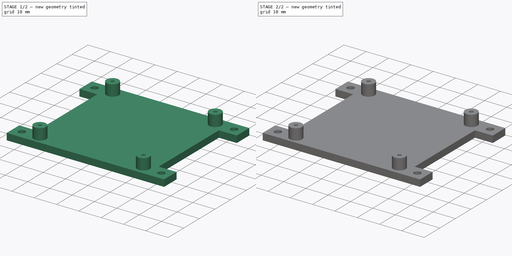
[diagram: build sequence overview — one tinted view per stage of 2, left to right]
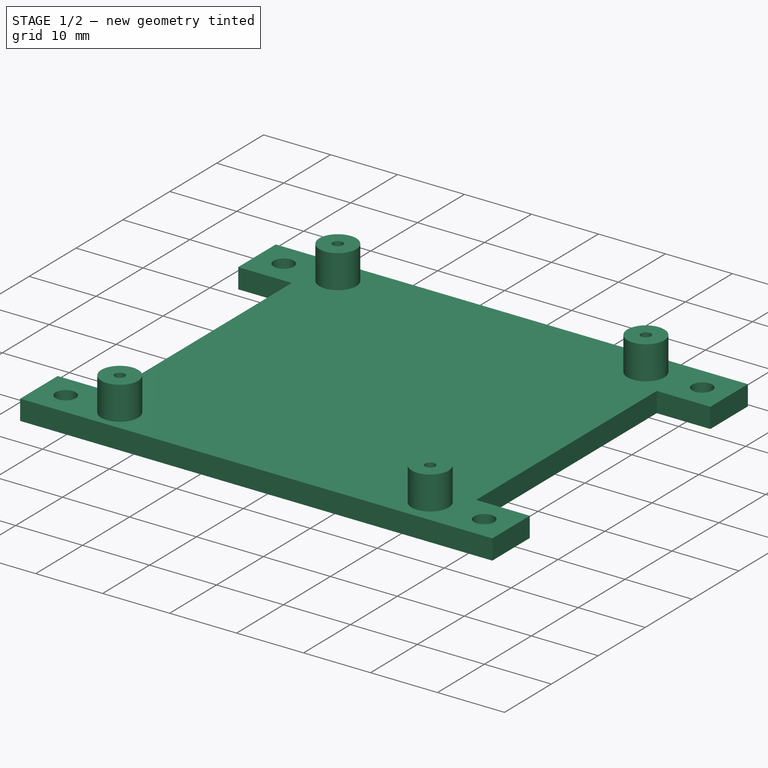
[diagram: stage 1 of 2 — iso view after this stage's code; geometry added in this stage tinted green]
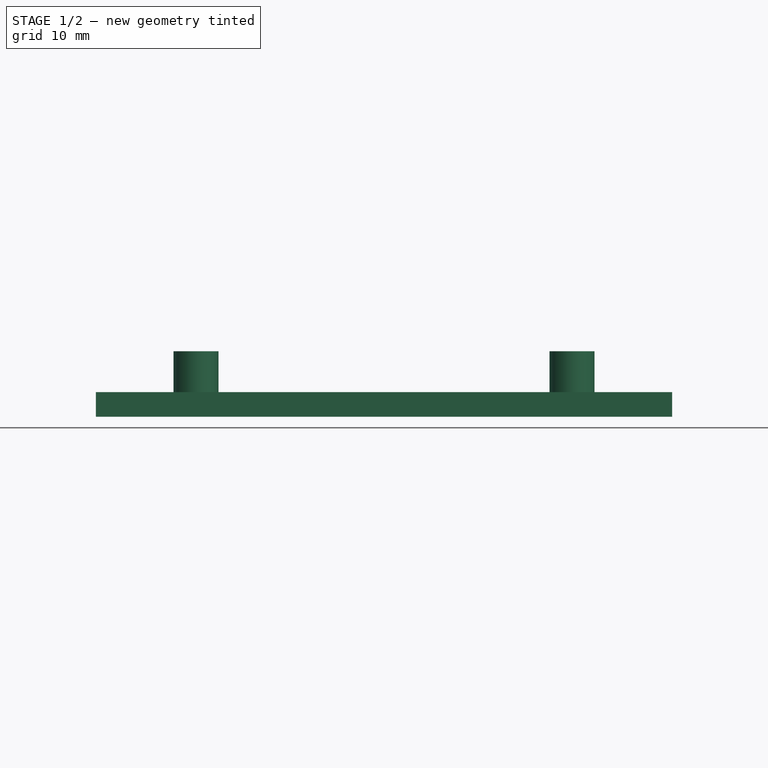
[diagram: stage 1 of 2 — front view after this stage's code; geometry added in this stage tinted green]
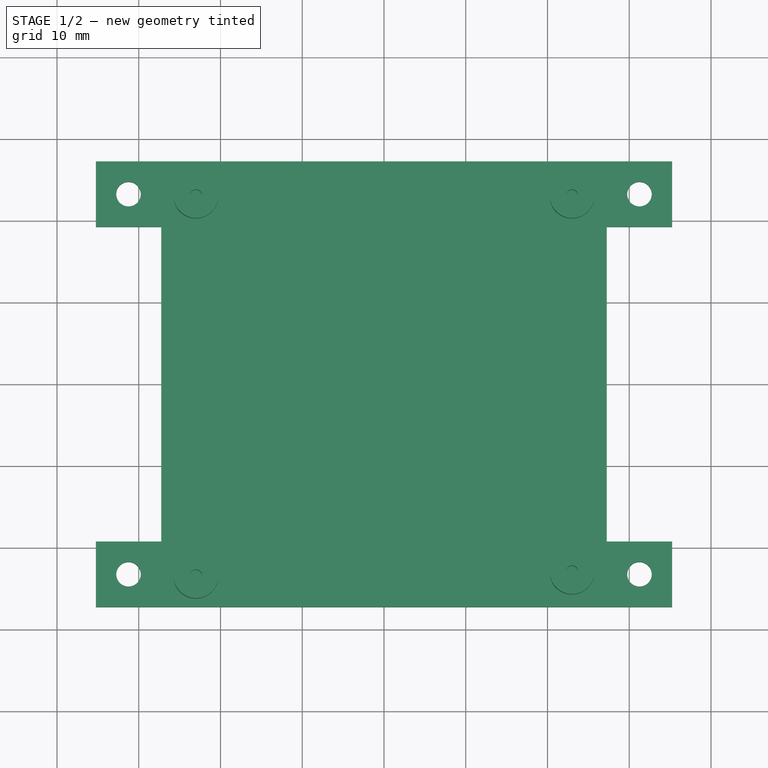
[diagram: stage 1 of 2 — top view after this stage's code; geometry added in this stage tinted green]
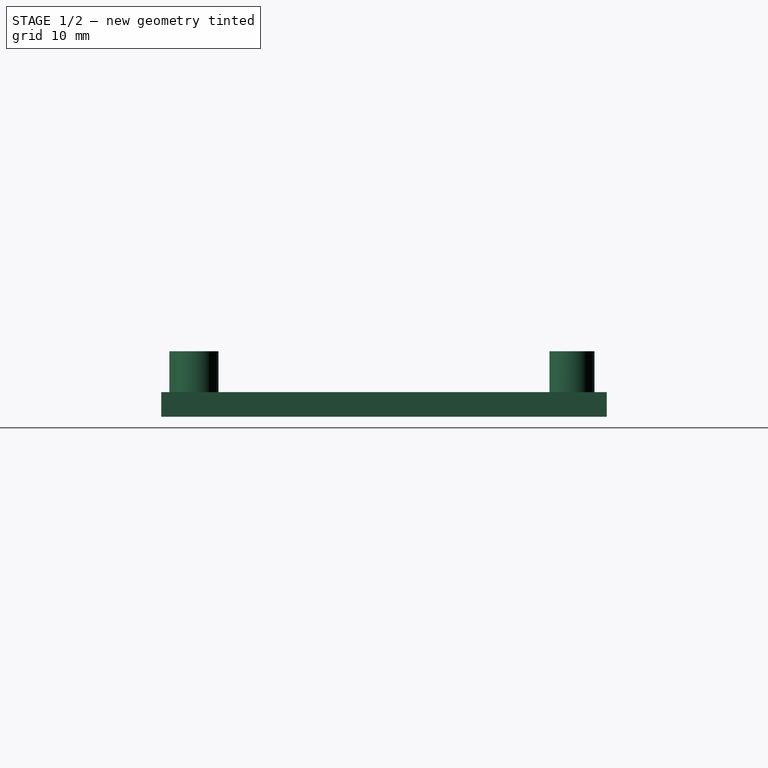
[diagram: stage 1 of 2 — right view after this stage's code; geometry added in this stage tinted green]
FCSTD DOCUMENT  (FreeCAD 0.20R29177 +233 (Git))
Label: USB_HUB_Holder
License: All rights reserved
LicenseURL: http://en.wikipedia.org/wiki/All_rights_reserved
objects: Sketcher::SketchObject×3, PartDesign::Pad×2, PartDesign::Hole×1, PartDesign::Pocket×1, PartDesign::Body×1
note: 12 computed .brp shape members not serialized (recipe doc carries the construction recipe); baked Part::Feature solids carry a one-line shape summary decoded from their .brp

FEATURE [Sketcher::SketchObject] Sketch
  FullyConstrained = false
  MapMode = 5
  Support = -> [XY_Plane]
  sketch-geometry (20):
    g0: LineSegment StartX=-27.25 StartY=27.25 StartZ=0 EndX=27.25 EndY=27.25 EndZ=0
    g1: LineSegment StartX=27.25 StartY=19.25 StartZ=0 EndX=27.25 EndY=-19.25 EndZ=0
    g2: LineSegment StartX=27.25 StartY=-27.25 StartZ=0 EndX=-27.25 EndY=-27.25 EndZ=0
    g3: LineSegment StartX=-27.25 StartY=-19.25 StartZ=0 EndX=-27.25 EndY=19.25 EndZ=0
    g4: LineSegment StartX=27.25 StartY=-27.25 StartZ=0 EndX=35.25 EndY=-27.25 EndZ=0
    g5: LineSegment StartX=35.25 StartY=-27.25 StartZ=0 EndX=35.25 EndY=-19.25 EndZ=0
    g6: LineSegment StartX=35.25 StartY=-19.25 StartZ=0 EndX=27.25 EndY=-19.25 EndZ=0
    g7: LineSegment StartX=27.25 StartY=27.25 StartZ=0 EndX=35.25 EndY=27.25 EndZ=0
    g8: LineSegment StartX=35.25 StartY=27.25 StartZ=0 EndX=35.25 EndY=19.25 EndZ=0
    g9: LineSegment StartX=35.25 StartY=19.25 StartZ=0 EndX=27.25 EndY=19.25 EndZ=0
    g10: LineSegment StartX=-27.25 StartY=27.25 StartZ=0 EndX=-35.25 EndY=27.25 EndZ=0
    g11: LineSegment StartX=-35.25 StartY=27.25 StartZ=0 EndX=-35.25 EndY=19.25 EndZ=0
    g12: LineSegment StartX=-35.25 StartY=19.25 StartZ=0 EndX=-27.25 EndY=19.25 EndZ=0
    g13: LineSegment StartX=-27.25 StartY=-27.25 StartZ=0 EndX=-35.25 EndY=-27.25 EndZ=0
    g14: LineSegment StartX=-35.25 StartY=-27.25 StartZ=0 EndX=-35.25 EndY=-19.25 EndZ=0
    g15: LineSegment StartX=-35.25 StartY=-19.25 StartZ=0 EndX=-27.25 EndY=-19.25 EndZ=0
    g16: Circle CenterX=31.25 CenterY=23.25 CenterZ=0 NormalX=0 NormalY=0 NormalZ=1 AngleXU=0 Radius=1.5
    g17: Circle CenterX=-31.25 CenterY=23.25 CenterZ=0 NormalX=0 NormalY=0 NormalZ=1 AngleXU=0 Radius=1.5
    g18: Circle CenterX=-31.25 CenterY=-23.25 CenterZ=0 NormalX=0 NormalY=0 NormalZ=1 AngleXU=0 Radius=1.5
    g19: Circle CenterX=31.25 CenterY=-23.25 CenterZ=0 NormalX=0 NormalY=0 NormalZ=1 AngleXU=0 Radius=1.5
  constraints (58):
    c: Horizontal(g0)
    c: Horizontal(g2)
    c: Vertical(g1)
    c: Vertical(g3)
    c: DistanceY(g2,g0) = 54.5
    c: DistanceX(g0,g0) = 54.5
    c: Distance(g0,g-2) = 27.25
    c: Distance(g0,g-1) = 27.25
    c: Coincident(g4,g5)
    c: Coincident(g5,g6)
    c: Horizontal(g4)
    c: Horizontal(g6)
    c: Vertical(g5)
    c: Coincident(g4,g2)
    c: DistanceY(g5,g5) = 8
    c: DistanceX(g4,g4) = 8
    c: Coincident(g7,g8)
    c: Coincident(g8,g9)
    c: Horizontal(g7)
    c: Horizontal(g9)
    c: Vertical(g8)
    c: Coincident(g7,g0)
    c: Coincident(g10,g11)
    c: Coincident(g11,g12)
    c: Horizontal(g10)
    c: Horizontal(g12)
    c: Vertical(g11)
    c: Coincident(g10,g0)
    c: Coincident(g13,g14)
    c: Coincident(g14,g15)
    c: Horizontal(g13)
    c: Horizontal(g15)
    c: Vertical(g14)
    c: Coincident(g13,g2)
    c: DistanceX(g13,g13) = 8
    c: DistanceX(g12,g12) = 8
    c: DistanceX(g9,g9) = 8
    c: DistanceY(g8,g8) = 8
    c: DistanceY(g11,g11) = 8
    c: DistanceY(g14,g14) = 8
    c: PointOnObject(g1,g6)
    c: PointOnObject(g1,g9)
    c: PointOnObject(g3,g12)
    c: PointOnObject(g3,g15)
    c: Diameter(g17) = 3
    c: Diameter(g16) = 3
    c: Diameter(g19) = 3
    c: Diameter(g18) = 3
    c: Distance(g18,g15) = 4
    c: Distance(g18,g14) = 4
    c: Distance(g19,g4) = 4
    c: Distance(g19,g5) = 4
    c: Block(g8)
    c: Distance(g16,g7) = 4
    c: Distance(g16,g8) = 4
    c: Distance(g17,g10) = 4
    c: Block(g11)
    c: Distance(g17,g11) = 4
FEATURE [PartDesign::Pad] Pad
  Direction = (0,0,1)
  Length = 3
  Length2 = 10
  Profile = -> Sketch
  ReferenceAxis = -> Sketch [N_Axis]
  Type = 0
FEATURE [Sketcher::SketchObject] Sketch001
  ExternalGeometry = -> [Pad]
  FullyConstrained = true
  MapMode = 5
  Placement = pos=(0,0,3) rot=(0,0,1;0rad)
  Support = -> [Pad]
  sketch-geometry (8):
    g0: Circle CenterX=-23 CenterY=-23.5 CenterZ=0 NormalX=0 NormalY=0 NormalZ=1 AngleXU=0 Radius=2.75
    g1: Circle CenterX=23 CenterY=-23 CenterZ=0 NormalX=0 NormalY=0 NormalZ=1 AngleXU=0 Radius=2.75
    g2: Circle CenterX=23 CenterY=23 CenterZ=0 NormalX=0 NormalY=0 NormalZ=1 AngleXU=0 Radius=2.75
    g3: Circle CenterX=-23 CenterY=23 CenterZ=0 NormalX=0 NormalY=0 NormalZ=1 AngleXU=0 Radius=2.75
    g4: Circle CenterX=-23 CenterY=23 CenterZ=0 NormalX=0 NormalY=0 NormalZ=1 AngleXU=0 Radius=0.75
    g5: Circle CenterX=23 CenterY=23 CenterZ=0 NormalX=0 NormalY=0 NormalZ=1 AngleXU=0 Radius=0.75
    g6: Circle CenterX=23 CenterY=-23 CenterZ=0 NormalX=0 NormalY=0 NormalZ=1 AngleXU=0 Radius=0.75
    g7: Circle CenterX=-23 CenterY=-23.5 CenterZ=0 NormalX=0 NormalY=0 NormalZ=1 AngleXU=0 Radius=0.75
  constraints (20):
    c: Distance(g3,g-2) = 23
    c: Distance(g2,g-2) = 23
    c: Distance(g3,g-1) = 23
    c: Distance(g1,g-1) = 23
    c: Distance(g2,g-1) = 23
    c: Distance(g0,g-1) = 23.5
    c: Distance(g0,g-2) = 23
    c: Distance(g1,g-2) = 23
    c: Diameter(g3) = 5.5
    c: Diameter(g2) = 5.5
    c: Diameter(g1) = 5.5
    c: Diameter(g0) = 5.5
    c: Coincident(g4,g3)
    c: Coincident(g5,g2)
    c: Coincident(g6,g1)
    c: Coincident(g7,g0)
    c: Diameter(g7) = 1.5
    c: Diameter(g6) = 1.5
    c: Diameter(g4) = 1.5
    c: Diameter(g5) = 1.5
FEATURE [PartDesign::Pad] Pad001
  BaseFeature = -> Pad
  Direction = (0,0,1)
  Length = 5
  Length2 = 10
  Profile = -> Sketch001
  ReferenceAxis = -> Sketch001 [N_Axis]
  Type = 0
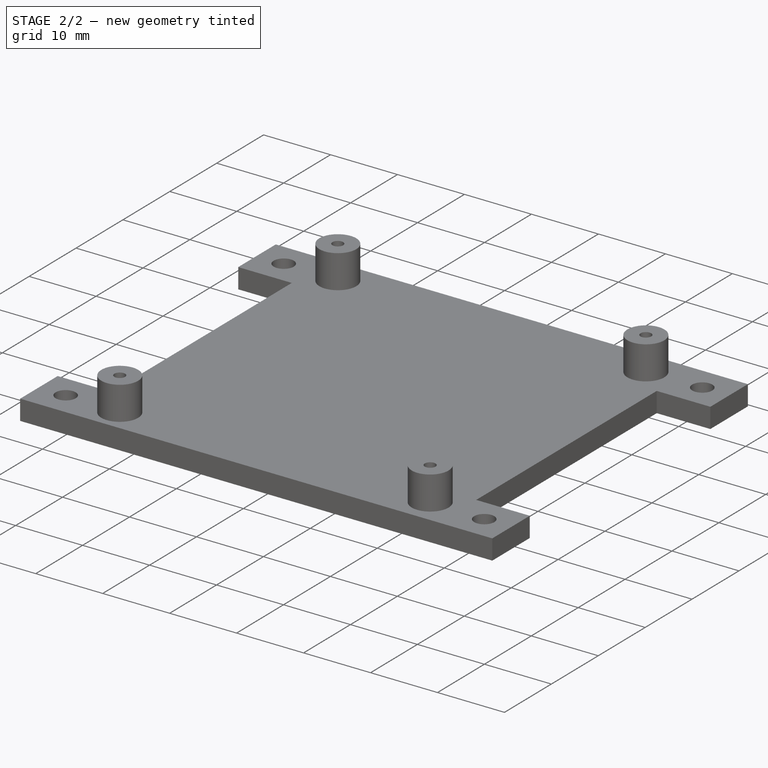
[diagram: stage 2 of 2 — iso view after this stage's code; geometry added in this stage tinted green]
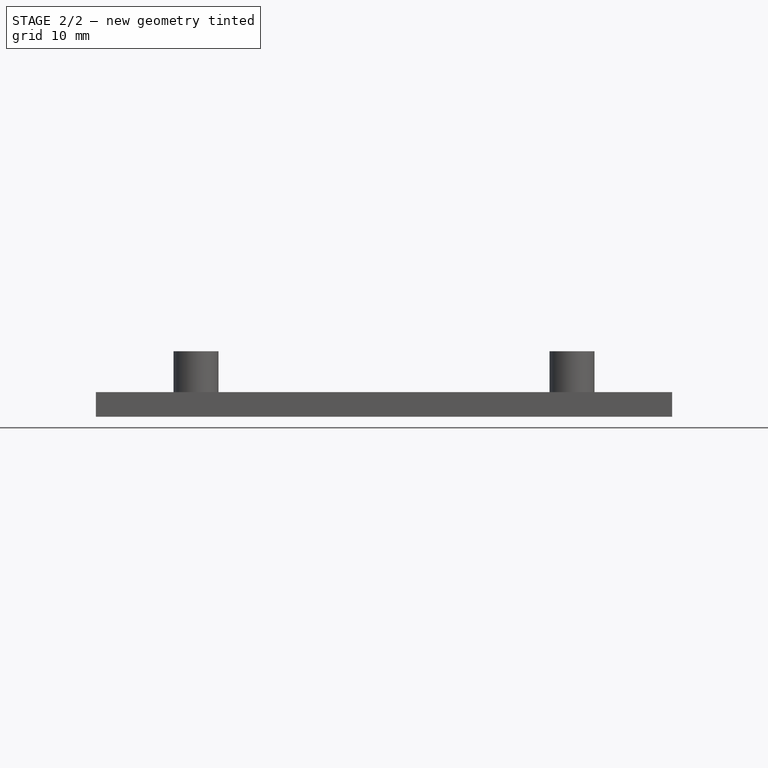
[diagram: stage 2 of 2 — front view after this stage's code; geometry added in this stage tinted green]
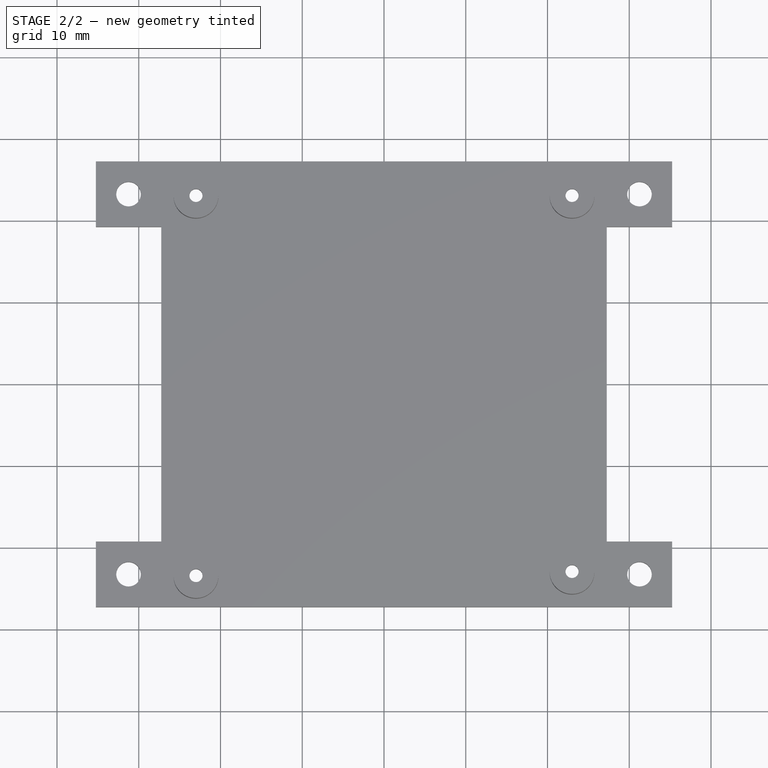
[diagram: stage 2 of 2 — top view after this stage's code; geometry added in this stage tinted green]
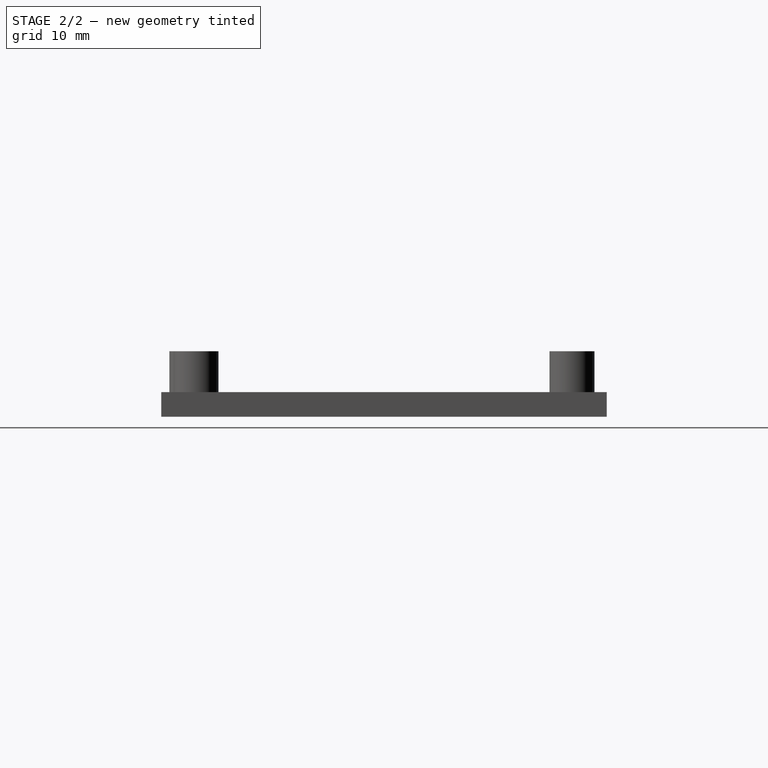
[diagram: stage 2 of 2 — right view after this stage's code; geometry added in this stage tinted green]
FEATURE [PartDesign::Hole] Hole
  BaseFeature = -> Pad001
  CustomThreadClearance = 0
  Depth = 25
  DepthType = 0
  Diameter = 1.6
  DrillForDepth = false
  DrillPoint = 1
  DrillPointAngle = 118
  HoleCutCountersinkAngle = 90
  HoleCutCustomValues = false
  HoleCutDepth = 0
  HoleCutDiameter = 6.1
  HoleCutType = 0
  ModelThread = false
  Profile = -> Pad001 [Edge76,Edge74,Edge73,Edge75]
  Tapered = false
  TaperedAngle = 90
  ThreadClass = 0
  ThreadDepth = 25
  ThreadDepthType = 0
  ThreadDirection = 0
  ThreadFit = 0
  ThreadSize = 3
  ThreadType = 2
  Threaded = false
  UseCustomThreadClearance = false
FEATURE [Sketcher::SketchObject] Sketch002
  FullyConstrained = false
  MapMode = 5
  Placement = pos=(0,0,0) rot=(1,0,0;3.14159rad)
  Support = -> [Hole]
  sketch-geometry (8):
    g0: Circle CenterX=-23.0041 CenterY=23.504 CenterZ=0 NormalX=0 NormalY=0 NormalZ=1 AngleXU=0 Radius=0.800812
    g1: Circle CenterX=23.0033 CenterY=23.0225 CenterZ=0 NormalX=0 NormalY=0 NormalZ=1 AngleXU=0 Radius=0.799234
    g2: Circle CenterX=23.0047 CenterY=-22.9889 CenterZ=0 NormalX=0 NormalY=0 NormalZ=1 AngleXU=0 Radius=0.799299
    g3: Circle CenterX=-22.9941 CenterY=-23.0034 CenterZ=0 NormalX=0 NormalY=0 NormalZ=1 AngleXU=0 Radius=0.80181
    g4: Circle CenterX=-22.9941 CenterY=-23.0034 CenterZ=0 NormalX=0 NormalY=0 NormalZ=1 AngleXU=0 Radius=2
    g5: Circle CenterX=23.0047 CenterY=-22.9889 CenterZ=0 NormalX=0 NormalY=0 NormalZ=1 AngleXU=0 Radius=2
    g6: Circle CenterX=23.0033 CenterY=23.0225 CenterZ=0 NormalX=0 NormalY=0 NormalZ=1 AngleXU=0 Radius=2
    g7: Circle CenterX=-23.0041 CenterY=23.504 CenterZ=0 NormalX=0 NormalY=0 NormalZ=1 AngleXU=0 Radius=2
  constraints (8):
    c: Coincident(g4,g3)
    c: Coincident(g5,g2)
    c: Coincident(g6,g1)
    c: Coincident(g7,g0)
    c: Diameter(g7) = 4
    c: Diameter(g6) = 4
    c: Diameter(g5) = 4
    c: Diameter(g4) = 4
FEATURE [PartDesign::Pocket] Pocket
  BaseFeature = -> Hole
  Direction = (0,0,1)
  Length = 5
  Length2 = 5
  Profile = -> Sketch002
  ReferenceAxis = -> Sketch002 [N_Axis]
  Type = 0
FEATURE [PartDesign::Body] Body
  Group = -> [Sketch,Pad,Sketch001,Pad001,Hole,Sketch002,Pocket]
  Origin = -> Origin
  Tip = -> Pocket
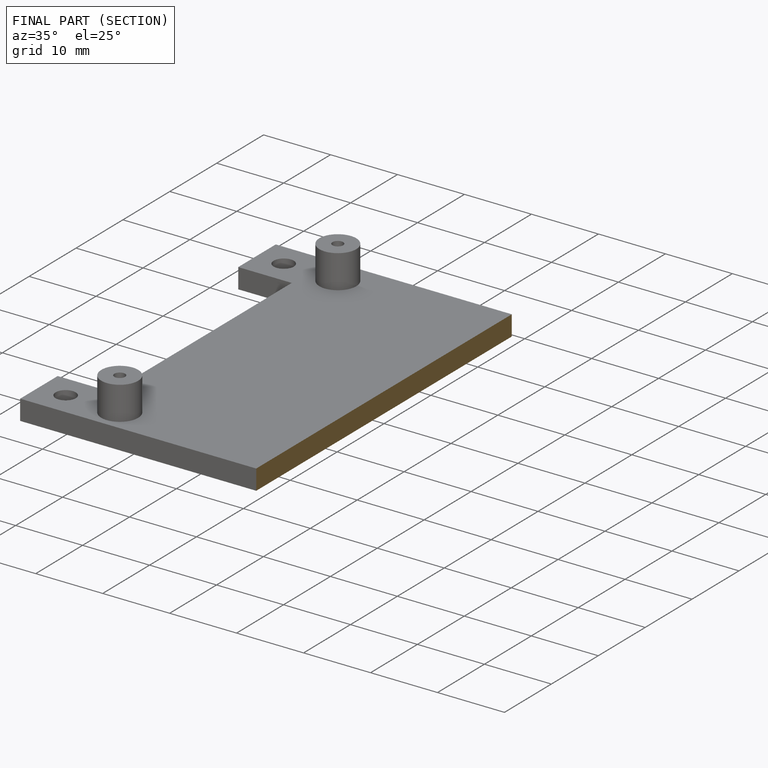
[diagram: finished part — half-section view (interior)]
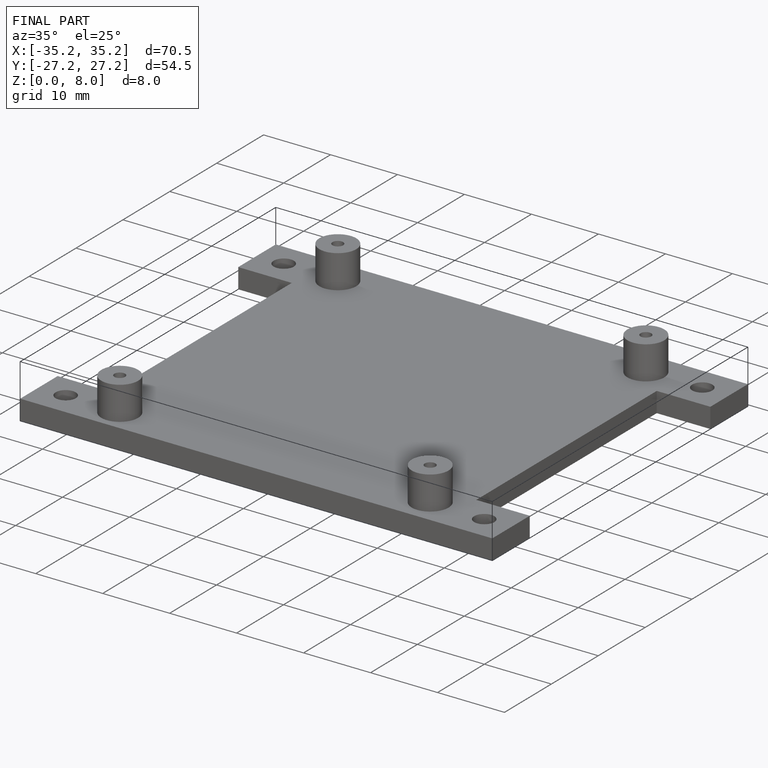
[diagram: finished part — iso view with bounding-box wireframe]
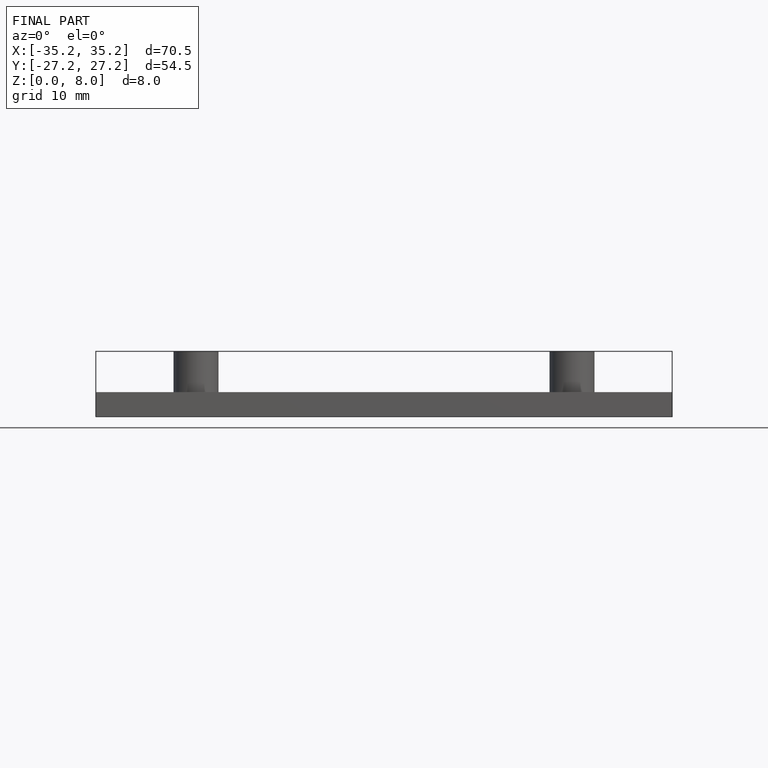
[diagram: finished part — front view with bounding-box wireframe]
